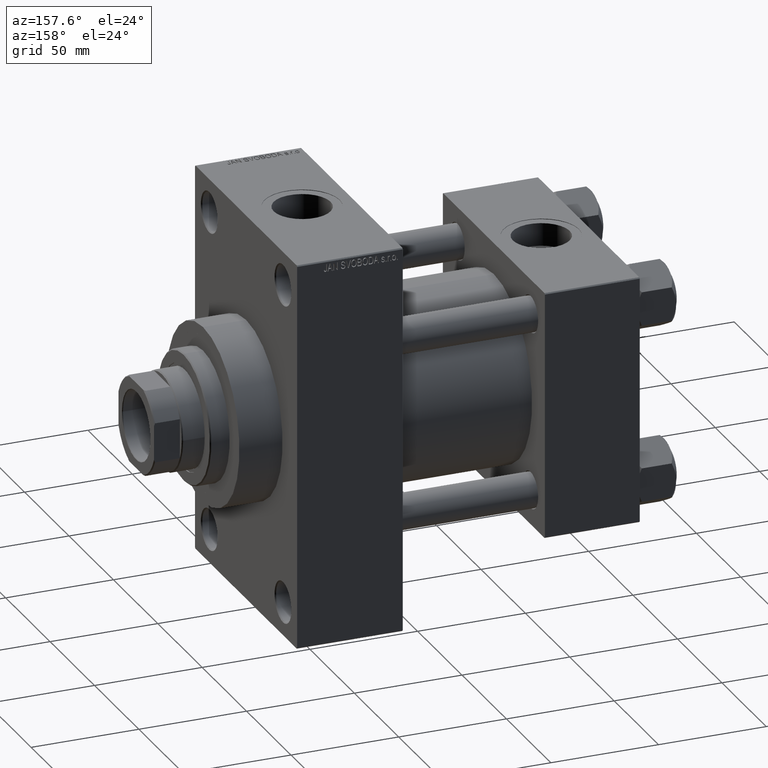
[diagram: clean part render]
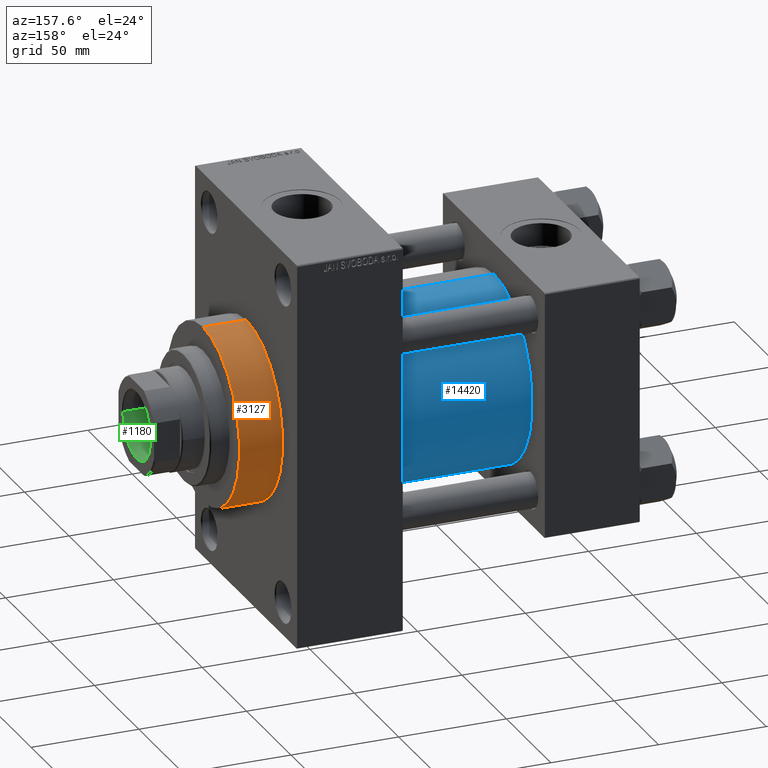
[diagram: same view with three faces highlighted in distinct colors, each labeled with its STEP entity id]
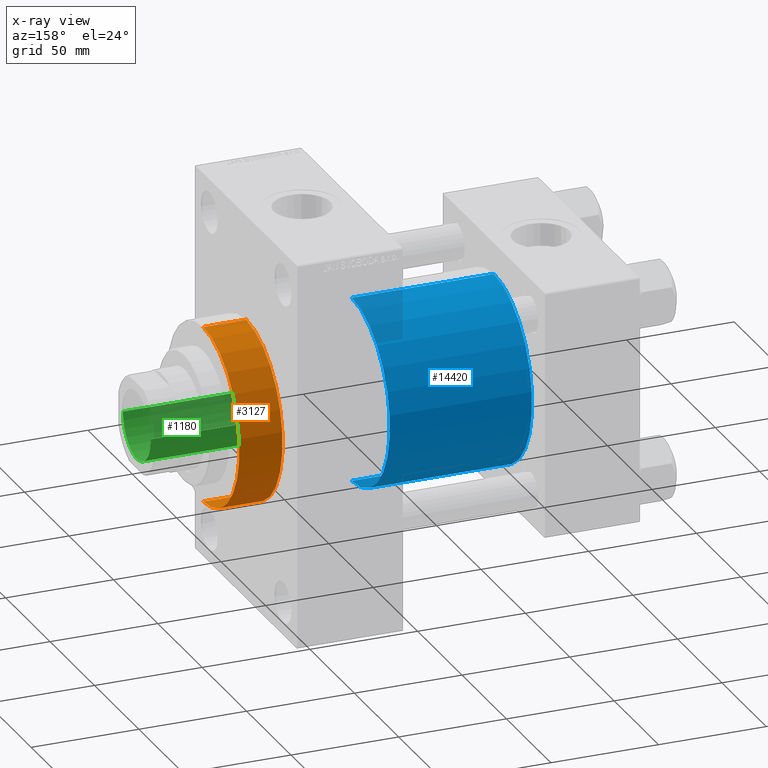
[diagram: x-ray of the same camera — body ghosted, the three highlighted faces saturated]
A machine part, auxiliary view with three faces highlighted in distinct colors.
The next image is the same camera in x-ray (body ghosted, the three faces saturated) — at least one of them is partly hidden behind the body in this view.
Their STEP definitions:

[orange] entity #3127 — the highlighted cylindrical surface (partial cylindrical patch) has radius 41 mm, axis along (-1, -0, -0).
#40 = CARTESIAN_POINT ( 'NONE',  ( 159.0000000000000000, 0.000000000000000000, 0.000000000000000000 ) ) ;
#144 = VECTOR ( 'NONE', #7043, 1000.000000000000000 ) ;
#158 = EDGE_CURVE ( 'NONE', #8981, #36247, #20575, .T. ) ;
#927 = VERTEX_POINT ( 'NONE', #12169 ) ;
#2069 = CARTESIAN_POINT ( 'NONE',  ( 179.0000000000000000, 0.000000000000000000, 0.000000000000000000 ) ) ;
#2311 = VECTOR ( 'NONE', #40027, 1000.000000000000000 ) ;
#3127 = ADVANCED_FACE ( 'NONE', ( #16011 ), #30753, .T. ) ;
#5954 = EDGE_CURVE ( 'NONE', #927, #36247, #18072, .T. ) ;
#7043 = DIRECTION ( 'NONE',  ( -1.000000000000000000, -0.000000000000000000, -0.000000000000000000 ) ) ;
#8176 = VERTEX_POINT ( 'NONE', #41494 ) ;
#8981 = VERTEX_POINT ( 'NONE', #35052 ) ;
#10392 = CARTESIAN_POINT ( 'NONE',  ( 179.0000000000000000, 0.000000000000000000, 41.00000000000000000 ) ) ;
#12169 = CARTESIAN_POINT ( 'NONE',  ( 179.0000000000000000, 0.000000000000000000, 41.00000000000000000 ) ) ;
#12947 = EDGE_CURVE ( 'NONE', #8176, #8981, #40760, .T. ) ;
#13069 = EDGE_LOOP ( 'NONE', ( #46986, #46818, #45430, #19025 ) ) ;
#16011 = FACE_OUTER_BOUND ( 'NONE', #13069, .T. ) ;
#16900 = CARTESIAN_POINT ( 'NONE',  ( 159.0000000000000000, 0.000000000000000000, 41.00000000000000000 ) ) ;
#18072 = LINE ( 'NONE', #10392, #2311 ) ;
#18322 = DIRECTION ( 'NONE',  ( 1.000000000000000000, 0.000000000000000000, 0.000000000000000000 ) ) ;
#19025 = ORIENTED_EDGE ( 'NONE', *, *, #5954, .F. ) ;
#20348 = DIRECTION ( 'NONE',  ( 1.000000000000000000, 0.000000000000000000, 0.000000000000000000 ) ) ;
#20386 = AXIS2_PLACEMENT_3D ( 'NONE', #2069, #20348, #31465 ) ;
#20575 = CIRCLE ( 'NONE', #29858, 41.00000000000000000 ) ;
#22111 = EDGE_CURVE ( 'NONE', #8176, #927, #39653, .T. ) ;
#22993 = AXIS2_PLACEMENT_3D ( 'NONE', #46183, #27121, #41842 ) ;
#27121 = DIRECTION ( 'NONE',  ( -1.000000000000000000, -0.000000000000000000, -0.000000000000000000 ) ) ;
#29447 = CARTESIAN_POINT ( 'NONE',  ( 179.0000000000000000, 5.021051876504148963E-15, -41.00000000000000000 ) ) ;
#29858 = AXIS2_PLACEMENT_3D ( 'NONE', #40, #18322, #32820 ) ;
#30753 = CYLINDRICAL_SURFACE ( 'NONE', #22993, 41.00000000000000000 ) ;
#31465 = DIRECTION ( 'NONE',  ( 0.000000000000000000, 0.000000000000000000, -1.000000000000000000 ) ) ;
#32820 = DIRECTION ( 'NONE',  ( 0.000000000000000000, 0.000000000000000000, -1.000000000000000000 ) ) ;
#35052 = CARTESIAN_POINT ( 'NONE',  ( 159.0000000000000000, 5.021051876504148963E-15, -41.00000000000000000 ) ) ;
#36247 = VERTEX_POINT ( 'NONE', #16900 ) ;
#39653 = CIRCLE ( 'NONE', #20386, 41.00000000000000000 ) ;
#40027 = DIRECTION ( 'NONE',  ( -1.000000000000000000, -0.000000000000000000, -0.000000000000000000 ) ) ;
#40760 = LINE ( 'NONE', #29447, #144 ) ;
#41494 = CARTESIAN_POINT ( 'NONE',  ( 179.0000000000000000, 5.021051876504148963E-15, -41.00000000000000000 ) ) ;
#41842 = DIRECTION ( 'NONE',  ( 0.000000000000000000, 0.000000000000000000, 1.000000000000000000 ) ) ;
#45430 = ORIENTED_EDGE ( 'NONE', *, *, #158, .T. ) ;
#46183 = CARTESIAN_POINT ( 'NONE',  ( 179.0000000000000000, 0.000000000000000000, 0.000000000000000000 ) ) ;
#46818 = ORIENTED_EDGE ( 'NONE', *, *, #12947, .T. ) ;
#46986 = ORIENTED_EDGE ( 'NONE', *, *, #22111, .F. ) ;

[blue] entity #14420 — the highlighted cylindrical surface (partial cylindrical patch) has radius 43 mm, axis along (-1, -0, -0).
#612 = DIRECTION ( 'NONE',  ( 0.000000000000000000, 0.000000000000000000, 1.000000000000000000 ) ) ;
#699 = AXIS2_PLACEMENT_3D ( 'NONE', #30452, #19101, #45155 ) ;
#2012 = VECTOR ( 'NONE', #6367, 1000.000000000000000 ) ;
#2270 = EDGE_CURVE ( 'NONE', #29606, #29093, #31448, .T. ) ;
#2354 = CARTESIAN_POINT ( 'NONE',  ( 110.0000000000000000, -2.602085213965210642E-15, 43.00000000000000000 ) ) ;
#3272 = DIRECTION ( 'NONE',  ( 1.000000000000000000, 0.000000000000000000, 0.000000000000000000 ) ) ;
#4704 = CARTESIAN_POINT ( 'NONE',  ( 44.00000000000000000, -2.602085213965210642E-15, 43.00000000000000000 ) ) ;
#6367 = DIRECTION ( 'NONE',  ( -1.000000000000000000, -0.000000000000000000, -0.000000000000000000 ) ) ;
#7762 = VERTEX_POINT ( 'NONE', #28482 ) ;
#8259 = AXIS2_PLACEMENT_3D ( 'NONE', #26127, #3272, #32908 ) ;
#9969 = LINE ( 'NONE', #16939, #2012 ) ;
#10459 = EDGE_CURVE ( 'NONE', #19341, #29093, #27879, .T. ) ;
#11212 = CARTESIAN_POINT ( 'NONE',  ( 110.0000000000000000, -2.602085213965210642E-15, 0.000000000000000000 ) ) ;
#13648 = CIRCLE ( 'NONE', #8259, 43.00000000000000000 ) ;
#14420 = ADVANCED_FACE ( 'NONE', ( #29527 ), #37232, .T. ) ;
#16939 = CARTESIAN_POINT ( 'NONE',  ( 110.0000000000000000, 2.663896022368408223E-15, -43.00000000000000000 ) ) ;
#19101 = DIRECTION ( 'NONE',  ( 1.000000000000000000, -0.000000000000000000, 0.000000000000000000 ) ) ;
#19341 = VERTEX_POINT ( 'NONE', #24946 ) ;
#21810 = DIRECTION ( 'NONE',  ( -1.000000000000000000, -0.000000000000000000, -0.000000000000000000 ) ) ;
#24946 = CARTESIAN_POINT ( 'NONE',  ( 110.0000000000000000, -2.602085213965210642E-15, 43.00000000000000000 ) ) ;
#26127 = CARTESIAN_POINT ( 'NONE',  ( 110.0000000000000000, -2.602085213965210642E-15, 0.000000000000000000 ) ) ;
#27526 = ORIENTED_EDGE ( 'NONE', *, *, #10459, .F. ) ;
#27630 = DIRECTION ( 'NONE',  ( -1.000000000000000000, -0.000000000000000000, -0.000000000000000000 ) ) ;
#27879 = LINE ( 'NONE', #2354, #33240 ) ;
#28464 = CARTESIAN_POINT ( 'NONE',  ( 44.00000000000000000, 2.663896022368408223E-15, -43.00000000000000000 ) ) ;
#28482 = CARTESIAN_POINT ( 'NONE',  ( 110.0000000000000000, 2.663896022368408223E-15, -43.00000000000000000 ) ) ;
#28524 = EDGE_CURVE ( 'NONE', #7762, #29606, #9969, .T. ) ;
#29093 = VERTEX_POINT ( 'NONE', #4704 ) ;
#29527 = FACE_OUTER_BOUND ( 'NONE', #32600, .T. ) ;
#29606 = VERTEX_POINT ( 'NONE', #28464 ) ;
#30452 = CARTESIAN_POINT ( 'NONE',  ( 44.00000000000000000, -2.602085213965210642E-15, 0.000000000000000000 ) ) ;
#31427 = EDGE_CURVE ( 'NONE', #7762, #19341, #13648, .T. ) ;
#31448 = CIRCLE ( 'NONE', #699, 43.00000000000000000 ) ;
#32600 = EDGE_LOOP ( 'NONE', ( #42375, #46280, #35915, #27526 ) ) ;
#32908 = DIRECTION ( 'NONE',  ( 0.000000000000000000, 0.000000000000000000, -1.000000000000000000 ) ) ;
#33240 = VECTOR ( 'NONE', #27630, 1000.000000000000000 ) ;
#33266 = AXIS2_PLACEMENT_3D ( 'NONE', #11212, #21810, #612 ) ;
#35915 = ORIENTED_EDGE ( 'NONE', *, *, #2270, .T. ) ;
#37232 = CYLINDRICAL_SURFACE ( 'NONE', #33266, 43.00000000000000000 ) ;
#42375 = ORIENTED_EDGE ( 'NONE', *, *, #31427, .F. ) ;
#45155 = DIRECTION ( 'NONE',  ( 0.000000000000000000, 0.000000000000000000, 1.000000000000000000 ) ) ;
#46280 = ORIENTED_EDGE ( 'NONE', *, *, #28524, .T. ) ;

[green] entity #1180 — the highlighted cylindrical surface (partial cylindrical patch) has radius 15.75 mm, axis along (1, 0, 0).
#953 = VERTEX_POINT ( 'NONE', #22075 ) ;
#1180 = ADVANCED_FACE ( 'NONE', ( #22193 ), #37151, .F. ) ;
#3551 = CARTESIAN_POINT ( 'NONE',  ( -15.74999999999999289, 1.928818708657080556E-15, 165.6999999999999886 ) ) ;
#4142 = DIRECTION ( 'NONE',  ( 1.000000000000000000, 0.000000000000000000, 0.000000000000000000 ) ) ;
#4387 = VECTOR ( 'NONE', #34539, 1000.000000000000000 ) ;
#4620 = VECTOR ( 'NONE', #35859, 1000.000000000000000 ) ;
#5982 = CARTESIAN_POINT ( 'NONE',  ( 15.74999999999999289, 0.000000000000000000, 166.0000000000000000 ) ) ;
#6516 = VERTEX_POINT ( 'NONE', #17428 ) ;
#6821 = ORIENTED_EDGE ( 'NONE', *, *, #37661, .T. ) ;
#9933 = EDGE_LOOP ( 'NONE', ( #23610, #41122, #6821, #36523 ) ) ;
#11233 = CIRCLE ( 'NONE', #32021, 15.74999999999998934 ) ;
#13239 = DIRECTION ( 'NONE',  ( 1.000000000000000000, 0.000000000000000000, 0.000000000000000000 ) ) ;
#14590 = EDGE_CURVE ( 'NONE', #6516, #43560, #42520, .T. ) ;
#17428 = CARTESIAN_POINT ( 'NONE',  ( 15.74999999999999289, 0.000000000000000000, 165.6999999999999886 ) ) ;
#18611 = AXIS2_PLACEMENT_3D ( 'NONE', #30948, #42024, #19118 ) ;
#19118 = DIRECTION ( 'NONE',  ( 1.000000000000000000, 0.000000000000000000, 0.000000000000000000 ) ) ;
#20051 = LINE ( 'NONE', #46360, #4387 ) ;
#22075 = CARTESIAN_POINT ( 'NONE',  ( 15.74999999999998934, 0.000000000000000000, 111.0000000000000142 ) ) ;
#22193 = FACE_OUTER_BOUND ( 'NONE', #9933, .T. ) ;
#23610 = ORIENTED_EDGE ( 'NONE', *, *, #30549, .F. ) ;
#27217 = EDGE_CURVE ( 'NONE', #953, #32829, #11233, .T. ) ;
#28063 = DIRECTION ( 'NONE',  ( -0.000000000000000000, -0.000000000000000000, 1.000000000000000000 ) ) ;
#28342 = AXIS2_PLACEMENT_3D ( 'NONE', #36905, #28063, #4142 ) ;
#30549 = EDGE_CURVE ( 'NONE', #32829, #43560, #20051, .T. ) ;
#30569 = LINE ( 'NONE', #5982, #4620 ) ;
#30948 = CARTESIAN_POINT ( 'NONE',  ( 0.000000000000000000, 0.000000000000000000, 165.6999999999999886 ) ) ;
#31100 = DIRECTION ( 'NONE',  ( -0.000000000000000000, -0.000000000000000000, 1.000000000000000000 ) ) ;
#32021 = AXIS2_PLACEMENT_3D ( 'NONE', #35187, #31100, #13239 ) ;
#32829 = VERTEX_POINT ( 'NONE', #41969 ) ;
#34539 = DIRECTION ( 'NONE',  ( -0.000000000000000000, -0.000000000000000000, 1.000000000000000000 ) ) ;
#35187 = CARTESIAN_POINT ( 'NONE',  ( 0.000000000000000000, 0.000000000000000000, 111.0000000000000142 ) ) ;
#35859 = DIRECTION ( 'NONE',  ( -0.000000000000000000, -0.000000000000000000, 1.000000000000000000 ) ) ;
#36523 = ORIENTED_EDGE ( 'NONE', *, *, #14590, .T. ) ;
#36905 = CARTESIAN_POINT ( 'NONE',  ( 0.000000000000000000, 0.000000000000000000, 166.0000000000000000 ) ) ;
#37151 = CYLINDRICAL_SURFACE ( 'NONE', #28342, 15.74999999999999289 ) ;
#37661 = EDGE_CURVE ( 'NONE', #953, #6516, #30569, .T. ) ;
#41122 = ORIENTED_EDGE ( 'NONE', *, *, #27217, .F. ) ;
#41969 = CARTESIAN_POINT ( 'NONE',  ( -15.74999999999998934, 1.928818708657080161E-15, 111.0000000000000142 ) ) ;
#42024 = DIRECTION ( 'NONE',  ( 0.000000000000000000, 0.000000000000000000, 1.000000000000000000 ) ) ;
#42520 = CIRCLE ( 'NONE', #18611, 15.74999999999999289 ) ;
#43560 = VERTEX_POINT ( 'NONE', #3551 ) ;
#46360 = CARTESIAN_POINT ( 'NONE',  ( -15.74999999999999289, 1.928818708657080556E-15, 166.0000000000000000 ) ) ;